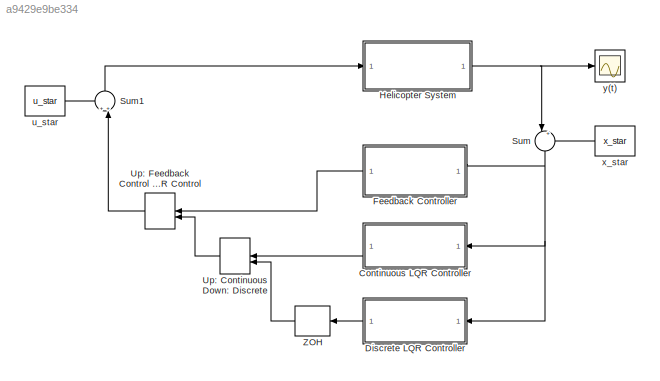
MODEL slx_a9429e9be334
KIND model
CONFIG AbsTol = auto
CONFIG EnableMultiTasking = off
CONFIG FixedStep = 0.01
CONFIG MaxStep = auto
CONFIG MinStep = auto
CONFIG RelTol = 1e-3
CONFIG SampleTimeConstraint = Unconstrained
CONFIG SolverName = ode1
CONFIG StartTime = 0.0
CONFIG StopTime = 10
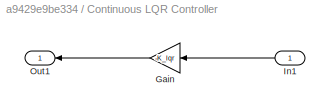
BLOCK [SubSystem] Continuous LQR Controller
  NameLocation = top
BLOCK [Gain] Continuous LQR Controller/Gain
  Gain = -K_lqr
  Multiplication = Matrix(K*u)
BLOCK [Inport] Continuous LQR Controller/In1
  NameLocation = top
BLOCK [Outport] Continuous LQR Controller/Out1
  NameLocation = top
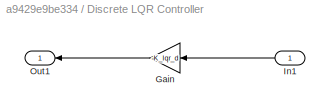
BLOCK [SubSystem] Discrete LQR Controller
  NameLocation = top
BLOCK [Gain] Discrete LQR Controller/Gain
  Gain = -K_lqr_d
  Multiplication = Matrix(K*u)
BLOCK [Inport] Discrete LQR Controller/In1
  NameLocation = top
BLOCK [Outport] Discrete LQR Controller/Out1
  NameLocation = top
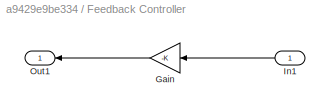
BLOCK [SubSystem] Feedback Controller
  NameLocation = top
BLOCK [Gain] Feedback Controller/Gain
  Gain = -K
  Multiplication = Matrix(K*u)
BLOCK [Inport] Feedback Controller/In1
  NameLocation = top
BLOCK [Outport] Feedback Controller/Out1
  NameLocation = top
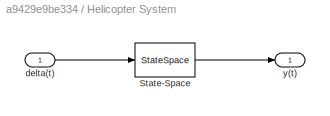
BLOCK [SubSystem] Helicopter System
BLOCK [StateSpace] Helicopter System/State-Space
  A = A
  B = B
  C = C
  D = D
  InitialCondition = init_cond
BLOCK [Inport] Helicopter System/delta(t)
BLOCK [Outport] Helicopter System/y(t)
BLOCK [Sum] Sum
  Inputs = |+-
  NameLocation = left
BLOCK [Sum] Sum1
  Inputs = ++|
  NameLocation = right
BLOCK [ManualSwitch] Up: Continuous Down: Discrete
  CurrentSetting = 0
  NameLocation = top
BLOCK [ManualSwitch] Up: Feedback Control Down: LQR Control
  CurrentSetting = 0
  NameLocation = top
BLOCK [ZeroOrderHold] ZOH
  NameLocation = top
  SampleTime = T
BLOCK [Constant] u_star
  Value = u_star
BLOCK [Constant] x_star
  NameLocation = top
  Value = x_star
BLOCK [Scope] y(t)
  Floating = off
  NumInputPorts = 1
  ScopeSpecificationString = Simulink.scopes.TimeScopeBlockCfg('CurrentConfiguration', extmgr.ConfigurationSet(extmgr.Configuration('Core','General UI',true),extmgr.Configuration('Core','Source UI',true),extmgr.Configuration('Sources','WiredSimulink',true),extmgr.Configuration('Visuals','Time Domain',true,'SerializedDisplays',{struct('MinYLimReal','-3.42503','MaxYLimReal','13.34744','YLabelReal','','MinYLimMag','0.00000','Max...<+1774ch>
LINE Continuous LQR Controller/Gain:1 -> Continuous LQR Controller/Out1:1
LINE Continuous LQR Controller/In1:1 -> Continuous LQR Controller/Gain:1
LINE Continuous LQR Controller:1 -> Up: Continuous Down: Discrete:1
LINE Discrete LQR Controller/Gain:1 -> Discrete LQR Controller/Out1:1
LINE Discrete LQR Controller/In1:1 -> Discrete LQR Controller/Gain:1
LINE Discrete LQR Controller:1 -> ZOH:1
LINE Feedback Controller/Gain:1 -> Feedback Controller/Out1:1
LINE Feedback Controller/In1:1 -> Feedback Controller/Gain:1
LINE Feedback Controller:1 -> Up: Feedback Control Down: LQR Control:1
LINE Helicopter System/State-Space:1 -> Helicopter System/y(t):1
LINE Helicopter System/delta(t):1 -> Helicopter System/State-Space:1
NET Helicopter System:1 -> Sum:1, y(t):1
LINE Sum1:1 -> Helicopter System:1
NET Sum:1 -> Continuous LQR Controller:1, Discrete LQR Controller:1, Feedback Controller:1
LINE Up: Continuous Down: Discrete:1 -> Up: Feedback Control Down: LQR Control:2
LINE Up: Feedback Control Down: LQR Control:1 -> Sum1:2
LINE ZOH:1 -> Up: Continuous Down: Discrete:2
LINE u_star:1 -> Sum1:1
LINE x_star:1 -> Sum:2
note: NET lines group one-source signal fan-out (src -> all destinations, sorted); 1:1 wires keep LINE
